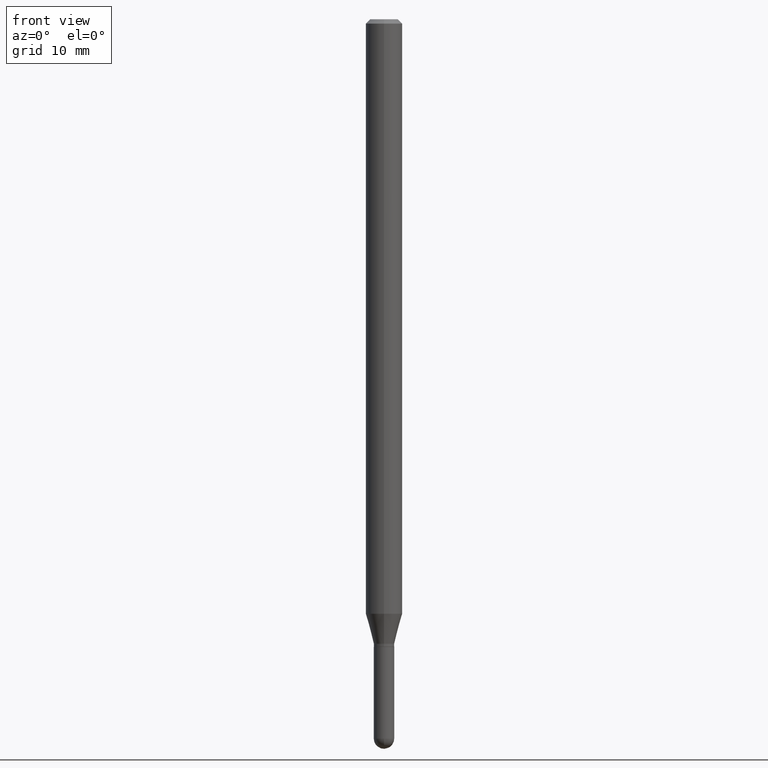
[diagram: clean part render]
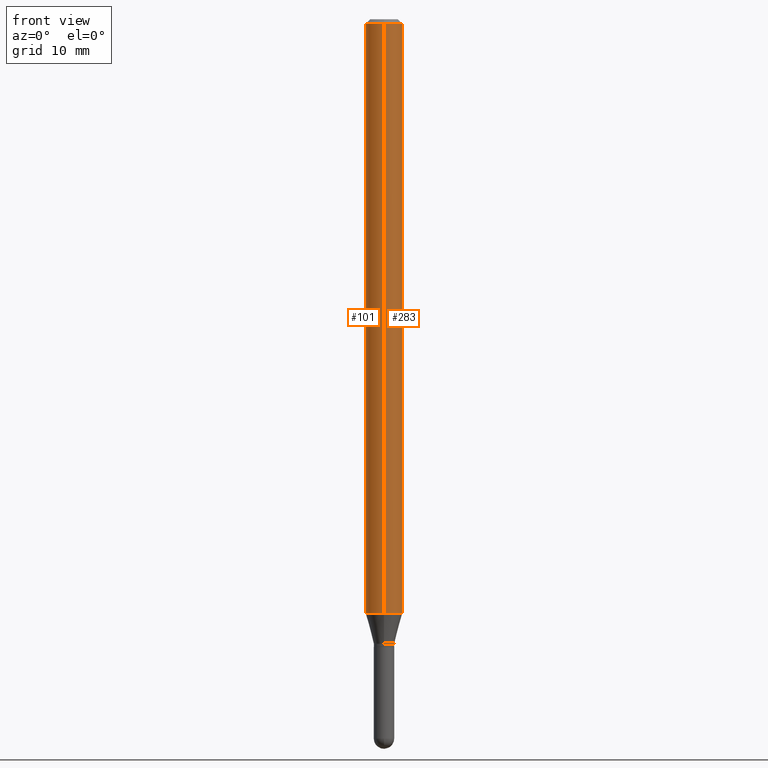
[diagram: same view with one multi-face feature highlighted, each face labeled with its STEP entity id]
A machine part, front view. The highlighted faces form ONE feature: a constant-radius fillet chain: 2 tangent blend faces with common blend radius 1.5875 mm. The faces share edges in the B-rep.
Their STEP definitions:
[1] entity #283 (Cylinder):
#24 = LINE ( 'NONE', #105, #116 ) ;
#36 = CIRCLE ( 'NONE', #250, 0.06250000000000000000 ) ;
#59 = VERTEX_POINT ( 'NONE', #442 ) ;
#72 = CARTESIAN_POINT ( 'NONE',  ( -4.364351673553916201E-16, -0.06250000000000000000, 2.182137522533645507E-16 ) ) ;
#82 = AXIS2_PLACEMENT_3D ( 'NONE', #337, #188, #463 ) ;
#92 = ORIENTED_EDGE ( 'NONE', *, *, #510, .F. ) ;
#105 = CARTESIAN_POINT ( 'NONE',  ( 4.440892098500625669E-16, 0.06250000000000000000, -2.182137522533645507E-16 ) ) ;
#109 = DIRECTION ( 'NONE',  ( -6.982962677686265922E-15, -1.000000000000000000, 3.491420036053832811E-15 ) ) ;
#110 = DIRECTION ( 'NONE',  ( -2.445511613694117581E-29, 3.491420036053832811E-15, 1.000000000000000000 ) ) ;
#116 = VECTOR ( 'NONE', #146, 39.37007874015748143 ) ;
#126 = VERTEX_POINT ( 'NONE', #349 ) ;
#134 = VECTOR ( 'NONE', #467, 39.37007874015748143 ) ;
#135 = ORIENTED_EDGE ( 'NONE', *, *, #388, .T. ) ;
#146 = DIRECTION ( 'NONE',  ( -2.445511613694117581E-29, 3.491420036053832811E-15, 1.000000000000000000 ) ) ;
#148 = CARTESIAN_POINT ( 'NONE',  ( 0.000000000000000000, 0.000000000000000000, 0.000000000000000000 ) ) ;
#156 = CIRCLE ( 'NONE', #82, 0.06250000000000000000 ) ;
#179 = CARTESIAN_POINT ( 'NONE',  ( 4.440892098501128074E-16, 0.06249999999999995837, -0.01500000000000054588 ) ) ;
#188 = DIRECTION ( 'NONE',  ( -2.445511613694117581E-29, 3.491420036053832811E-15, 1.000000000000000000 ) ) ;
#216 = VERTEX_POINT ( 'NONE', #424 ) ;
#247 = EDGE_LOOP ( 'NONE', ( #328, #135, #370, #92 ) ) ;
#250 = AXIS2_PLACEMENT_3D ( 'NONE', #268, #110, #505 ) ;
#253 = EDGE_CURVE ( 'NONE', #59, #410, #156, .T. ) ;
#268 = CARTESIAN_POINT ( 'NONE',  ( 4.982408579503238904E-29, -7.113309560614486055E-15, -2.037368602791855388 ) ) ;
#283 = ADVANCED_FACE ( 'NONE', ( #345 ), #504, .T. ) ;
#304 = DIRECTION ( 'NONE',  ( -2.445511613694117581E-29, 3.491420036053832811E-15, 1.000000000000000000 ) ) ;
#309 = LINE ( 'NONE', #72, #134 ) ;
#328 = ORIENTED_EDGE ( 'NONE', *, *, #450, .T. ) ;
#337 = CARTESIAN_POINT ( 'NONE',  ( 3.668267420541256859E-31, -5.237130054080864217E-17, -0.01500000000000032904 ) ) ;
#345 = FACE_OUTER_BOUND ( 'NONE', #247, .T. ) ;
#349 = CARTESIAN_POINT ( 'NONE',  ( 4.440892098501122158E-16, 0.06249999999999285988, -2.037368602791855832 ) ) ;
#370 = ORIENTED_EDGE ( 'NONE', *, *, #253, .F. ) ;
#388 = EDGE_CURVE ( 'NONE', #126, #410, #24, .T. ) ;
#410 = VERTEX_POINT ( 'NONE', #179 ) ;
#424 = CARTESIAN_POINT ( 'NONE',  ( -4.364351673553420698E-16, -0.06250000000000714706, -2.037368602791854943 ) ) ;
#442 = CARTESIAN_POINT ( 'NONE',  ( -4.364351673553912750E-16, -0.06250000000000005551, -0.01500000000000011047 ) ) ;
#444 = AXIS2_PLACEMENT_3D ( 'NONE', #148, #304, #109 ) ;
#450 = EDGE_CURVE ( 'NONE', #216, #126, #36, .T. ) ;
#463 = DIRECTION ( 'NONE',  ( -6.982962677686265922E-15, -1.000000000000000000, 3.483106191921935554E-15 ) ) ;
#467 = DIRECTION ( 'NONE',  ( -2.445511613694117581E-29, 3.491420036053832811E-15, 1.000000000000000000 ) ) ;
#504 = CYLINDRICAL_SURFACE ( 'NONE', #444, 0.06250000000000000000 ) ;
#505 = DIRECTION ( 'NONE',  ( -6.982962677686265922E-15, -1.000000000000000000, 4.370956789862821150E-15 ) ) ;
#510 = EDGE_CURVE ( 'NONE', #216, #59, #309, .T. ) ;
[2] entity #101 (Cylinder):
#9 = EDGE_CURVE ( 'NONE', #126, #216, #416, .T. ) ;
#24 = LINE ( 'NONE', #105, #116 ) ;
#59 = VERTEX_POINT ( 'NONE', #442 ) ;
#72 = CARTESIAN_POINT ( 'NONE',  ( -4.364351673553916201E-16, -0.06250000000000000000, 2.182137522533645507E-16 ) ) ;
#75 = CIRCLE ( 'NONE', #494, 0.06250000000000000000 ) ;
#78 = EDGE_CURVE ( 'NONE', #410, #59, #75, .T. ) ;
#85 = CARTESIAN_POINT ( 'NONE',  ( 3.668267420541256859E-31, -5.237130054080864217E-17, -0.01500000000000032904 ) ) ;
#90 = CARTESIAN_POINT ( 'NONE',  ( 4.982408579503238904E-29, -7.113309560614486055E-15, -2.037368602791855388 ) ) ;
#93 = AXIS2_PLACEMENT_3D ( 'NONE', #90, #487, #210 ) ;
#96 = DIRECTION ( 'NONE',  ( -6.982962677686265922E-15, -1.000000000000000000, 3.483106191921935554E-15 ) ) ;
#101 = ADVANCED_FACE ( 'NONE', ( #206 ), #241, .T. ) ;
#105 = CARTESIAN_POINT ( 'NONE',  ( 4.440892098500625669E-16, 0.06250000000000000000, -2.182137522533645507E-16 ) ) ;
#116 = VECTOR ( 'NONE', #146, 39.37007874015748143 ) ;
#124 = ORIENTED_EDGE ( 'NONE', *, *, #388, .F. ) ;
#126 = VERTEX_POINT ( 'NONE', #349 ) ;
#134 = VECTOR ( 'NONE', #467, 39.37007874015748143 ) ;
#146 = DIRECTION ( 'NONE',  ( -2.445511613694117581E-29, 3.491420036053832811E-15, 1.000000000000000000 ) ) ;
#179 = CARTESIAN_POINT ( 'NONE',  ( 4.440892098501128074E-16, 0.06249999999999995837, -0.01500000000000054588 ) ) ;
#206 = FACE_OUTER_BOUND ( 'NONE', #255, .T. ) ;
#210 = DIRECTION ( 'NONE',  ( -6.982962677686265922E-15, -1.000000000000000000, 4.370956789862821150E-15 ) ) ;
#216 = VERTEX_POINT ( 'NONE', #424 ) ;
#241 = CYLINDRICAL_SURFACE ( 'NONE', #269, 0.06250000000000000000 ) ;
#246 = DIRECTION ( 'NONE',  ( -2.445511613694117581E-29, 3.491420036053832811E-15, 1.000000000000000000 ) ) ;
#255 = EDGE_LOOP ( 'NONE', ( #124, #365, #336, #285 ) ) ;
#269 = AXIS2_PLACEMENT_3D ( 'NONE', #405, #480, #360 ) ;
#285 = ORIENTED_EDGE ( 'NONE', *, *, #78, .F. ) ;
#309 = LINE ( 'NONE', #72, #134 ) ;
#336 = ORIENTED_EDGE ( 'NONE', *, *, #510, .T. ) ;
#349 = CARTESIAN_POINT ( 'NONE',  ( 4.440892098501122158E-16, 0.06249999999999285988, -2.037368602791855832 ) ) ;
#360 = DIRECTION ( 'NONE',  ( -6.982962677686265922E-15, -1.000000000000000000, 3.491420036053832811E-15 ) ) ;
#365 = ORIENTED_EDGE ( 'NONE', *, *, #9, .T. ) ;
#388 = EDGE_CURVE ( 'NONE', #126, #410, #24, .T. ) ;
#405 = CARTESIAN_POINT ( 'NONE',  ( 0.000000000000000000, 0.000000000000000000, 0.000000000000000000 ) ) ;
#410 = VERTEX_POINT ( 'NONE', #179 ) ;
#416 = CIRCLE ( 'NONE', #93, 0.06250000000000000000 ) ;
#424 = CARTESIAN_POINT ( 'NONE',  ( -4.364351673553420698E-16, -0.06250000000000714706, -2.037368602791854943 ) ) ;
#442 = CARTESIAN_POINT ( 'NONE',  ( -4.364351673553912750E-16, -0.06250000000000005551, -0.01500000000000011047 ) ) ;
#467 = DIRECTION ( 'NONE',  ( -2.445511613694117581E-29, 3.491420036053832811E-15, 1.000000000000000000 ) ) ;
#480 = DIRECTION ( 'NONE',  ( -2.445511613694117581E-29, 3.491420036053832811E-15, 1.000000000000000000 ) ) ;
#487 = DIRECTION ( 'NONE',  ( -2.445511613694117581E-29, 3.491420036053832811E-15, 1.000000000000000000 ) ) ;
#494 = AXIS2_PLACEMENT_3D ( 'NONE', #85, #246, #96 ) ;
#510 = EDGE_CURVE ( 'NONE', #216, #59, #309, .T. ) ;